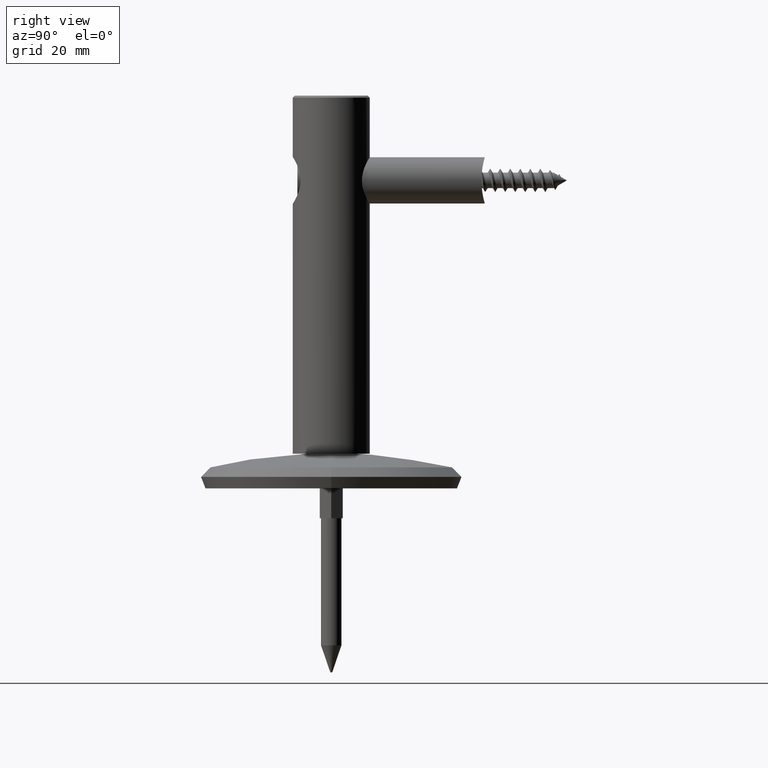
[diagram: clean part render]
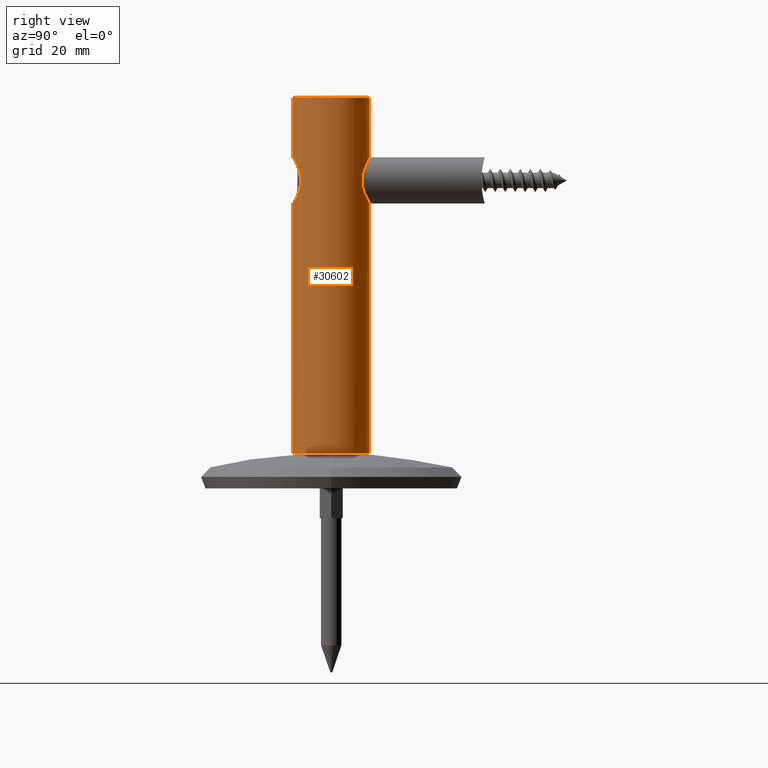
[diagram: same view with one face highlighted and labeled with its STEP entity id]
A machine part, right view. The second image highlights one B-rep face of the part: STEP entity #30602.
In plain terms, the highlighted cylindrical surface (partial cylindrical patch) has radius 10 mm, axis along (0, 0, -1).
Its self-contained STEP definition (entity closure, byte-faithful):
#655 = EDGE_CURVE ( 'NONE', #16486, #9390, #29250, .T. ) ;
#784 = CARTESIAN_POINT ( 'NONE',  ( 1.406130673270775455, 9.902621428391205072, 67.11226324876437843 ) ) ;
#1076 = CARTESIAN_POINT ( 'NONE',  ( 5.838228288400564736, 8.119134744778390811, 71.40075415114887392 ) ) ;
#1167 = CARTESIAN_POINT ( 'NONE',  ( 2.311154935784771050E-15, -10.00000000000001776, 79.10000000000002274 ) ) ;
#1209 = CARTESIAN_POINT ( 'NONE',  ( 0.8144785650791043219, 9.968826876180575169, 67.00164373818493857 ) ) ;
#1351 = CARTESIAN_POINT ( 'NONE',  ( 6.009092171398580540, 7.993794619536600976, 72.19015865916051666 ) ) ;
#1772 = ORIENTED_EDGE ( 'NONE', *, *, #15990, .F. ) ;
#1880 = CARTESIAN_POINT ( 'NONE',  ( 0.000000000000000000, 9.999999999999982236, 94.49999999999994316 ) ) ;
#1898 = EDGE_CURVE ( 'NONE', #29631, #33367, #37280, .T. ) ;
#3129 = B_SPLINE_CURVE_WITH_KNOTS ( 'NONE', 3,
 ( #22818, #26127, #6074, #5788, #12417, #9392, #32537, #29487, #33125, #23247, #36330, #36176, #19786, #43045, #10229, #30062, #3159, #20205, #29919, #20064 ),
 .UNSPECIFIED., .F., .F.,
 ( 4, 2, 2, 2, 2, 2, 2, 2, 2, 4 ),
 ( 1.355252715606880543E-18, 0.001086470153551268676, 0.001629705230326906158, 0.002172940307102543857, 0.003259410460653833132, 0.004345880614205123275, 0.005432350767756412117, 0.006518820921307700092, 0.007605291074858989801, 0.008691761228410277776 ),
 .UNSPECIFIED. ) ;
#3159 = CARTESIAN_POINT ( 'NONE',  ( 5.588204987137052271, -8.294265283356553553, 70.52873087232796934 ) ) ;
#3692 = CARTESIAN_POINT ( 'NONE',  ( 2.721673709919322448, 9.629829668724292802, 78.41775991080112362 ) ) ;
#3831 = CARTESIAN_POINT ( 'NONE',  ( 5.967644172518319579, 8.024320443068429398, 74.01492658194273133 ) ) ;
#3934 = CARTESIAN_POINT ( 'NONE',  ( 5.838152341479756480, -8.120251948316235868, 74.80277672995612193 ) ) ;
#4263 = CARTESIAN_POINT ( 'NONE',  ( 3.703172693265106563, 9.290467730853887218, 68.21182120977056229 ) ) ;
#5779 = CARTESIAN_POINT ( 'NONE',  ( 1.441447041606174873, -9.901968751877898711, 78.93814768866147347 ) ) ;
#5788 = CARTESIAN_POINT ( 'NONE',  ( 1.260720755458458742, -9.921813300883254527, 67.02898421303208920 ) ) ;
#6074 = CARTESIAN_POINT ( 'NONE',  ( 0.7289268164362048275, -9.979772026433803234, 66.93300312327968982 ) ) ;
#6417 = CARTESIAN_POINT ( 'NONE',  ( 5.934107467572996342, -8.049419399320246526, 74.45941381323819996 ) ) ;
#6789 = CARTESIAN_POINT ( 'NONE',  ( 0.000000000000000000, -2.449293598294707400E-16, 2.000000000000000444 ) ) ;
#7107 = ORIENTED_EDGE ( 'NONE', *, *, #1898, .F. ) ;
#7165 = CARTESIAN_POINT ( 'NONE',  ( 4.550887754276714325, 8.905546106357013159, 76.99116415186300344 ) ) ;
#7277 = CARTESIAN_POINT ( 'NONE',  ( 5.591893067679043483, -8.291757738025287594, 75.46267306397744790 ) ) ;
#7528 = B_SPLINE_CURVE_WITH_KNOTS ( 'NONE', 3,
 ( #33642, #40068, #26534, #40354, #23494, #3692, #36986, #26814, #16553, #26395, #7165, #30159, #30299, #33494, #13633, #16981, #23632, #3831, #39780, #26957, #37424, #17399, #1351, #11028, #1076, #33785, #17685, #13926, #14481, #30594, #17544, #37125, #34075, #4263, #40779, #14345, #40922, #21007, #37555, #27390, #784, #30860, #1209, #14065, #7576, #24051 ),
 .UNSPECIFIED., .F., .F.,
 ( 4, 2, 2, 2, 2, 2, 2, 2, 2, 2, 2, 2, 2, 2, 2, 2, 2, 2, 2, 2, 2, 2, 4 ),
 ( 0.000000000000000000, 0.001213744022831801444, 0.002427488045663602888, 0.003641232068495404550, 0.004854976091327205777, 0.005461848102743120485, 0.006068720114159035194, 0.007282464136990864610, 0.008496208159822694894, 0.009103080171238609603, 0.009709952182654524311, 0.01092369620548631209, 0.01153056821690222507, 0.01213744022831813978, 0.01335118425114993103, 0.01456492827398172055, 0.01517180028539759883, 0.01577867229681348057, 0.01699241631964526142, 0.01759928833106115878, 0.01820616034247705961, 0.01881303235389295697, 0.01941990436530885780 ),
 .UNSPECIFIED. ) ;
#7576 = CARTESIAN_POINT ( 'NONE',  ( 0.2046548903319638235, 9.999999999999987566, 66.94999999999998863 ) ) ;
#7721 = DIRECTION ( 'NONE',  ( 0.000000000000000000, 1.000000000000000000, 1.224646799147353454E-16 ) ) ;
#8111 = LINE ( 'NONE', #33148, #13302 ) ;
#9077 = DIRECTION ( 'NONE',  ( -0.000000000000000000, 1.224646799147353454E-16, -1.000000000000000000 ) ) ;
#9390 = VERTEX_POINT ( 'NONE', #1167 ) ;
#9392 = CARTESIAN_POINT ( 'NONE',  ( 1.784405562031102566, -9.841086674805797685, 67.16403826185842263 ) ) ;
#9549 = CARTESIAN_POINT ( 'NONE',  ( 5.999999999999998224, -7.999999999999994671, 71.89999999999999147 ) ) ;
#9693 = CARTESIAN_POINT ( 'NONE',  ( 6.037779974283359330, -7.971665019287484277, 72.26320293458768163 ) ) ;
#9799 = ORIENTED_EDGE ( 'NONE', *, *, #36687, .F. ) ;
#10229 = CARTESIAN_POINT ( 'NONE',  ( 5.089089200743062591, -8.610652315879187668, 69.61909594426889214 ) ) ;
#11028 = CARTESIAN_POINT ( 'NONE',  ( 5.888654550894294459, 8.082464529223480909, 71.59754482757701055 ) ) ;
#11163 = CIRCLE ( 'NONE', #12170, 9.999999999999994671 ) ;
#11204 = DIRECTION ( 'NONE',  ( -0.000000000000000000, 1.224646799147353454E-16, -1.000000000000000000 ) ) ;
#11275 = CARTESIAN_POINT ( 'NONE',  ( 4.443590674762931236, -8.961999724534546630, 77.19322534531256963 ) ) ;
#12170 = AXIS2_PLACEMENT_3D ( 'NONE', #19811, #22704, #12867 ) ;
#12417 = CARTESIAN_POINT ( 'NONE',  ( 1.436360279580965349, -9.897876504487713945, 67.06877569416721485 ) ) ;
#12867 = DIRECTION ( 'NONE',  ( 0.000000000000000000, -1.000000000000000000, 0.000000000000000000 ) ) ;
#13302 = VECTOR ( 'NONE', #36481, 1000.000000000000000 ) ;
#13527 = CARTESIAN_POINT ( 'NONE',  ( 2.311154935784771050E-15, -10.00000000000001776, 79.10000000000002274 ) ) ;
#13633 = CARTESIAN_POINT ( 'NONE',  ( 5.421001608041579267, 8.405144587884130658, 75.71455700267290467 ) ) ;
#13673 = EDGE_CURVE ( 'NONE', #29631, #16873, #11163, .T. ) ;
#13723 = CARTESIAN_POINT ( 'NONE',  ( 5.999999999999998224, -7.999999999999994671, 74.09999999999999432 ) ) ;
#13926 = CARTESIAN_POINT ( 'NONE',  ( 5.422728907692173195, 8.404039833022356021, 70.28865130650555670 ) ) ;
#14065 = CARTESIAN_POINT ( 'NONE',  ( 0.4108393231302249760, 9.993602737291663374, 66.96055762282651358 ) ) ;
#14144 = EDGE_CURVE ( 'NONE', #16873, #9390, #40442, .T. ) ;
#14226 = CARTESIAN_POINT ( 'NONE',  ( 0.000000000000000000, 9.999999999999987566, 2.000000000000001776 ) ) ;
#14345 = CARTESIAN_POINT ( 'NONE',  ( 3.066534330907875638, 9.524328338992235743, 67.77036782318103292 ) ) ;
#14481 = CARTESIAN_POINT ( 'NONE',  ( 5.234325726003712376, 8.524348308810855812, 69.94147263943655446 ) ) ;
#14532 = ORIENTED_EDGE ( 'NONE', *, *, #655, .F. ) ;
#14952 = VECTOR ( 'NONE', #11204, 1000.000000000000000 ) ;
#15233 = ORIENTED_EDGE ( 'NONE', *, *, #13673, .T. ) ;
#15990 = EDGE_CURVE ( 'NONE', #33367, #20338, #7528, .T. ) ;
#16107 = CARTESIAN_POINT ( 'NONE',  ( 0.000000000000000000, 9.999999999999994671, 79.04999999999999716 ) ) ;
#16166 = CARTESIAN_POINT ( 'NONE',  ( 5.999999999999998224, -7.999999999999994671, 74.09999999999999432 ) ) ;
#16362 = DIRECTION ( 'NONE',  ( -0.000000000000000000, 1.224646799147353454E-16, -1.000000000000000000 ) ) ;
#16486 = VERTEX_POINT ( 'NONE', #13723 ) ;
#16517 = CARTESIAN_POINT ( 'NONE',  ( 5.086796350053801596, -8.612070336544226379, 76.38480791454499297 ) ) ;
#16553 = CARTESIAN_POINT ( 'NONE',  ( 4.014261596793803122, 9.163843580945881584, 77.54270988121827202 ) ) ;
#16873 = VERTEX_POINT ( 'NONE', #19345 ) ;
#16981 = CARTESIAN_POINT ( 'NONE',  ( 5.725903421911371360, 8.200472180342476491, 74.99251302582781875 ) ) ;
#17011 = EDGE_CURVE ( 'NONE', #38178, #18846, #24457, .T. ) ;
#17399 = CARTESIAN_POINT ( 'NONE',  ( 6.050143112004296775, 7.962145964295061162, 72.59230089176391232 ) ) ;
#17544 = CARTESIAN_POINT ( 'NONE',  ( 4.556908883484440231, 8.906517596818529725, 69.00164361096382493 ) ) ;
#17685 = CARTESIAN_POINT ( 'NONE',  ( 5.651910156946466479, 8.250113948191380331, 70.83271212945442130 ) ) ;
#18398 = VECTOR ( 'NONE', #16362, 1000.000000000000000 ) ;
#18846 = VERTEX_POINT ( 'NONE', #21676 ) ;
#19345 = CARTESIAN_POINT ( 'NONE',  ( 1.224646799147353256E-15, -10.00000000000000711, 94.49999999999994316 ) ) ;
#19786 = CARTESIAN_POINT ( 'NONE',  ( 4.442407249333902186, -8.962613396149082590, 68.80541445487192220 ) ) ;
#19811 = CARTESIAN_POINT ( 'NONE',  ( 0.000000000000000000, -1.157291225194248412E-14, 94.49999999999994316 ) ) ;
#19923 = DIRECTION ( 'NONE',  ( 0.000000000000000000, 1.000000000000000000, 1.301042606982607046E-16 ) ) ;
#20064 = CARTESIAN_POINT ( 'NONE',  ( 5.999999999999998224, -7.999999999999994671, 71.89999999999999147 ) ) ;
#20205 = CARTESIAN_POINT ( 'NONE',  ( 5.836466125283143569, -8.121485993177570251, 71.19144553632722250 ) ) ;
#20338 = VERTEX_POINT ( 'NONE', #41458 ) ;
#20436 = CARTESIAN_POINT ( 'NONE',  ( 0.000000000000000000, 0.000000000000000000, 0.000000000000000000 ) ) ;
#20471 = LINE ( 'NONE', #25332, #18398 ) ;
#21007 = CARTESIAN_POINT ( 'NONE',  ( 2.171196613993468194, 9.763287833104456581, 67.34948204877628086 ) ) ;
#21676 = CARTESIAN_POINT ( 'NONE',  ( 1.224646799147352270E-15, -9.999999999999987566, 1.999999999999999112 ) ) ;
#21945 = EDGE_CURVE ( 'NONE', #41016, #16486, #30111, .T. ) ;
#22124 = CARTESIAN_POINT ( 'NONE',  ( 2.776720245701029821, -9.608192567360264391, 78.43426751475585945 ) ) ;
#22698 = CARTESIAN_POINT ( 'NONE',  ( 5.999999999999998224, -7.999999999999994671, 71.89999999999999147 ) ) ;
#22704 = DIRECTION ( 'NONE',  ( -0.000000000000000000, 1.224646799147336690E-16, -1.000000000000000000 ) ) ;
#22818 = CARTESIAN_POINT ( 'NONE',  ( 1.224646799147353651E-15, -10.00000000000000355, 66.90000000000000568 ) ) ;
#22839 = CARTESIAN_POINT ( 'NONE',  ( 6.056865859714453570, -7.957033113640100908, 73.37265240388153131 ) ) ;
#23053 = CYLINDRICAL_SURFACE ( 'NONE', #23311, 9.999999999999994671 ) ;
#23235 = CARTESIAN_POINT ( 'NONE',  ( 0.3680280244352397423, -9.994881295313504666, 79.09161901587404486 ) ) ;
#23247 = CARTESIAN_POINT ( 'NONE',  ( 3.383601600619753569, -9.415544283319221108, 67.91234417585285144 ) ) ;
#23311 = AXIS2_PLACEMENT_3D ( 'NONE', #20436, #27242, #7721 ) ;
#23494 = CARTESIAN_POINT ( 'NONE',  ( 1.991496359054913068, 9.806888878935032139, 78.72656725152342005 ) ) ;
#23632 = CARTESIAN_POINT ( 'NONE',  ( 5.846942947629002241, 8.113152305887217253, 74.60535663118037064 ) ) ;
#24051 = CARTESIAN_POINT ( 'NONE',  ( 4.029265264640274852E-17, 9.999999999999985789, 66.94999999999998863 ) ) ;
#24087 = CARTESIAN_POINT ( 'NONE',  ( 0.000000000000000000, 9.999999999999994671, 1.224646799147352862E-15 ) ) ;
#24457 = CIRCLE ( 'NONE', #32458, 9.999999999999987566 ) ;
#24711 = ORIENTED_EDGE ( 'NONE', *, *, #28414, .F. ) ;
#25147 = CARTESIAN_POINT ( 'NONE',  ( 3.666209806556897988, -9.308176573259926201, 77.88766724828172983 ) ) ;
#25332 = CARTESIAN_POINT ( 'NONE',  ( 1.224646799147352665E-15, -9.999999999999994671, -1.224646799147352862E-15 ) ) ;
#26127 = CARTESIAN_POINT ( 'NONE',  ( 0.3679341633250206023, -9.999999999999992895, 66.90000000000003411 ) ) ;
#26204 = CARTESIAN_POINT ( 'NONE',  ( 5.999999999999998224, -7.999999999999994671, 74.09999999999999432 ) ) ;
#26395 = CARTESIAN_POINT ( 'NONE',  ( 4.421572486548469350, 8.970634207350199674, 77.13390844774049526 ) ) ;
#26443 = ORIENTED_EDGE ( 'NONE', *, *, #14144, .T. ) ;
#26534 = CARTESIAN_POINT ( 'NONE',  ( 0.8133608692612179780, 9.974777563945542269, 79.00856366429738387 ) ) ;
#26685 = ORIENTED_EDGE ( 'NONE', *, *, #17011, .F. ) ;
#26814 = CARTESIAN_POINT ( 'NONE',  ( 3.716458935213287074, 9.290178945135027178, 77.79005561881722031 ) ) ;
#26957 = CARTESIAN_POINT ( 'NONE',  ( 6.039326310959250321, 7.970395315902693234, 73.41246035262949476 ) ) ;
#26978 = CARTESIAN_POINT ( 'NONE',  ( 0.1829822170877245247, -10.00000000000001066, 79.10000000000002274 ) ) ;
#27242 = DIRECTION ( 'NONE',  ( -0.000000000000000000, 1.224646799147353454E-16, -1.000000000000000000 ) ) ;
#27390 = CARTESIAN_POINT ( 'NONE',  ( 1.599763916516394380, 9.873117185467600976, 67.16191493066770590 ) ) ;
#27770 = CARTESIAN_POINT ( 'NONE',  ( 4.887382368024701051, -8.727911017885014999, 76.66635111113663470 ) ) ;
#28414 = EDGE_CURVE ( 'NONE', #20338, #38178, #8111, .T. ) ;
#28898 = CARTESIAN_POINT ( 'NONE',  ( 0.9105750765707044669, -9.960047274694973751, 79.03433467057104167 ) ) ;
#29250 = B_SPLINE_CURVE_WITH_KNOTS ( 'NONE', 3,
 ( #26204, #6417, #3934, #7277, #33753, #16517, #27770, #11275, #31254, #25147, #37950, #41898, #22124, #30791, #36620, #38209, #5779, #28898, #29620, #23235, #26978, #13527 ),
 .UNSPECIFIED., .F., .F.,
 ( 4, 2, 2, 2, 2, 2, 2, 2, 2, 2, 4 ),
 ( 0.000000000000000000, 0.001087240917065961966, 0.002174481834131923932, 0.003261722751197885465, 0.004348963668263847865, 0.005436204585329809831, 0.005979825043862779972, 0.006523445502395750113, 0.007610686419461688661, 0.008154306877994661404, 0.008697927336527633280 ),
 .UNSPECIFIED. ) ;
#29308 = EDGE_LOOP ( 'NONE', ( #15233, #26443, #14532, #31541, #9799, #30771, #26685, #24711, #1772, #7107 ) ) ;
#29487 = CARTESIAN_POINT ( 'NONE',  ( 2.460030176699289584, -9.698759199967071254, 67.40659911025716156 ) ) ;
#29620 = CARTESIAN_POINT ( 'NONE',  ( 0.7313280862610685995, -9.974881250642695818, 79.05874789800448355 ) ) ;
#29631 = VERTEX_POINT ( 'NONE', #1880 ) ;
#29919 = CARTESIAN_POINT ( 'NONE',  ( 5.934239385334305616, -8.049320460999268789, 71.54130573818711980 ) ) ;
#30062 = CARTESIAN_POINT ( 'NONE',  ( 5.438263188528249081, -8.394489602731892930, 70.21528554076411410 ) ) ;
#30111 = B_SPLINE_CURVE_WITH_KNOTS ( 'NONE', 3,
 ( #9549, #9693, #42641, #22839, #38990, #16166 ),
 .UNSPECIFIED., .F., .F.,
 ( 4, 2, 4 ),
 ( 0.002051106008994781071, 0.003147755811804922674, 0.004244405614615064277 ),
 .UNSPECIFIED. ) ;
#30159 = CARTESIAN_POINT ( 'NONE',  ( 4.796717776702053904, 8.775581426614806446, 76.69208196141589440 ) ) ;
#30299 = CARTESIAN_POINT ( 'NONE',  ( 4.913175076922119189, 8.710698480723833015, 76.53561816291255582 ) ) ;
#30594 = CARTESIAN_POINT ( 'NONE',  ( 4.801205093167038918, 8.775597389874819854, 69.29848881204361533 ) ) ;
#30602 = ADVANCED_FACE ( 'NONE', ( #32930 ), #23053, .T. ) ;
#30771 = ORIENTED_EDGE ( 'NONE', *, *, #30826, .T. ) ;
#30791 = CARTESIAN_POINT ( 'NONE',  ( 2.456381230726700782, -9.695036409611700989, 78.58637896979342941 ) ) ;
#30826 = EDGE_CURVE ( 'NONE', #33263, #18846, #20471, .T. ) ;
#30860 = CARTESIAN_POINT ( 'NONE',  ( 1.013487691724134443, 9.950475231016321587, 67.03212850164422321 ) ) ;
#31254 = CARTESIAN_POINT ( 'NONE',  ( 4.196788639444721802, -9.081311060662249801, 77.44042234381458911 ) ) ;
#31541 = ORIENTED_EDGE ( 'NONE', *, *, #21945, .F. ) ;
#32458 = AXIS2_PLACEMENT_3D ( 'NONE', #6789, #43047, #19923 ) ;
#32537 = CARTESIAN_POINT ( 'NONE',  ( 1.957215796255969531, -9.808094919462719830, 67.21975114525351103 ) ) ;
#32930 = FACE_OUTER_BOUND ( 'NONE', #29308, .T. ) ;
#33125 = CARTESIAN_POINT ( 'NONE',  ( 2.778209702347850474, -9.611596370668198830, 67.55807456625181828 ) ) ;
#33148 = CARTESIAN_POINT ( 'NONE',  ( 0.000000000000000000, 9.999999999999994671, 1.224646799147352862E-15 ) ) ;
#33263 = VERTEX_POINT ( 'NONE', #33807 ) ;
#33367 = VERTEX_POINT ( 'NONE', #16107 ) ;
#33494 = CARTESIAN_POINT ( 'NONE',  ( 5.236775033796227774, 8.522817414429454175, 76.05421475456982705 ) ) ;
#33642 = CARTESIAN_POINT ( 'NONE',  ( 0.000000000000000000, 9.999999999999994671, 79.04999999999999716 ) ) ;
#33753 = CARTESIAN_POINT ( 'NONE',  ( 5.440457914608000323, -8.393132327557140115, 75.78097813811363892 ) ) ;
#33785 = CARTESIAN_POINT ( 'NONE',  ( 5.719867276675409506, 8.202949279897202572, 71.01868347562384542 ) ) ;
#33807 = CARTESIAN_POINT ( 'NONE',  ( 1.224646799147353651E-15, -10.00000000000000355, 66.90000000000000568 ) ) ;
#34075 = CARTESIAN_POINT ( 'NONE',  ( 4.002357609286153917, 9.165555750829893711, 68.45893430010785607 ) ) ;
#36176 = CARTESIAN_POINT ( 'NONE',  ( 4.199507216127062570, -9.080012251942980228, 68.56225841915181718 ) ) ;
#36330 = CARTESIAN_POINT ( 'NONE',  ( 3.671460611491014436, -9.306065781629094147, 68.11637550839930100 ) ) ;
#36481 = DIRECTION ( 'NONE',  ( -0.000000000000000000, 1.224646799147353454E-16, -1.000000000000000000 ) ) ;
#36620 = CARTESIAN_POINT ( 'NONE',  ( 2.290239614737862084, -9.735725794284423529, 78.65658131874403125 ) ) ;
#36687 = EDGE_CURVE ( 'NONE', #33263, #41016, #3129, .T. ) ;
#36986 = CARTESIAN_POINT ( 'NONE',  ( 3.066076106126745415, 9.524634857105835906, 78.23028461557571234 ) ) ;
#37125 = CARTESIAN_POINT ( 'NONE',  ( 4.146968652995052018, 9.100852683116047004, 68.59062429729470978 ) ) ;
#37280 = LINE ( 'NONE', #24087, #14952 ) ;
#37424 = CARTESIAN_POINT ( 'NONE',  ( 6.049927887791730186, 7.962309499174095251, 73.20702683924379528 ) ) ;
#37555 = CARTESIAN_POINT ( 'NONE',  ( 1.981753320185143830, 9.803588186194822640, 67.28028535298446400 ) ) ;
#37950 = CARTESIAN_POINT ( 'NONE',  ( 3.383579299134497731, -9.415496567135274830, 78.08754823196990458 ) ) ;
#38178 = VERTEX_POINT ( 'NONE', #14226 ) ;
#38209 = CARTESIAN_POINT ( 'NONE',  ( 1.786247313577987939, -9.845178387026511047, 78.84360842020153370 ) ) ;
#38990 = CARTESIAN_POINT ( 'NONE',  ( 6.037620414525908252, -7.971784689105573918, 73.73833101489869080 ) ) ;
#39780 = CARTESIAN_POINT ( 'NONE',  ( 5.998176607403465255, 8.001408698998329072, 73.81575928994637081 ) ) ;
#40068 = CARTESIAN_POINT ( 'NONE',  ( 0.4110269615724988501, 9.999999999999994671, 79.05000000000001137 ) ) ;
#40354 = CARTESIAN_POINT ( 'NONE',  ( 1.601885813985818530, 9.878851410603747496, 78.84793596498039392 ) ) ;
#40442 = LINE ( 'NONE', #42596, #42005 ) ;
#40779 = CARTESIAN_POINT ( 'NONE',  ( 3.548167065931709718, 9.350915797403439811, 68.09586329216836020 ) ) ;
#40922 = CARTESIAN_POINT ( 'NONE',  ( 2.723501472187578987, 9.629437985969996561, 67.58291303873905065 ) ) ;
#41016 = VERTEX_POINT ( 'NONE', #22698 ) ;
#41458 = CARTESIAN_POINT ( 'NONE',  ( 4.029265264640274852E-17, 9.999999999999985789, 66.94999999999998863 ) ) ;
#41898 = CARTESIAN_POINT ( 'NONE',  ( 2.931919076476066088, -9.561845880833502065, 78.35203601450264443 ) ) ;
#42005 = VECTOR ( 'NONE', #9077, 1000.000000000000000 ) ;
#42596 = CARTESIAN_POINT ( 'NONE',  ( 1.224646799147352665E-15, -9.999999999999994671, -1.224646799147352862E-15 ) ) ;
#42641 = CARTESIAN_POINT ( 'NONE',  ( 6.057055091978226002, -7.956889067146800443, 72.63280454602005420 ) ) ;
#43045 = CARTESIAN_POINT ( 'NONE',  ( 4.887910490172481914, -8.727642986386831225, 69.33423117144666037 ) ) ;
#43047 = DIRECTION ( 'NONE',  ( -0.000000000000000000, 1.224646799147353454E-16, -1.000000000000000000 ) ) ;